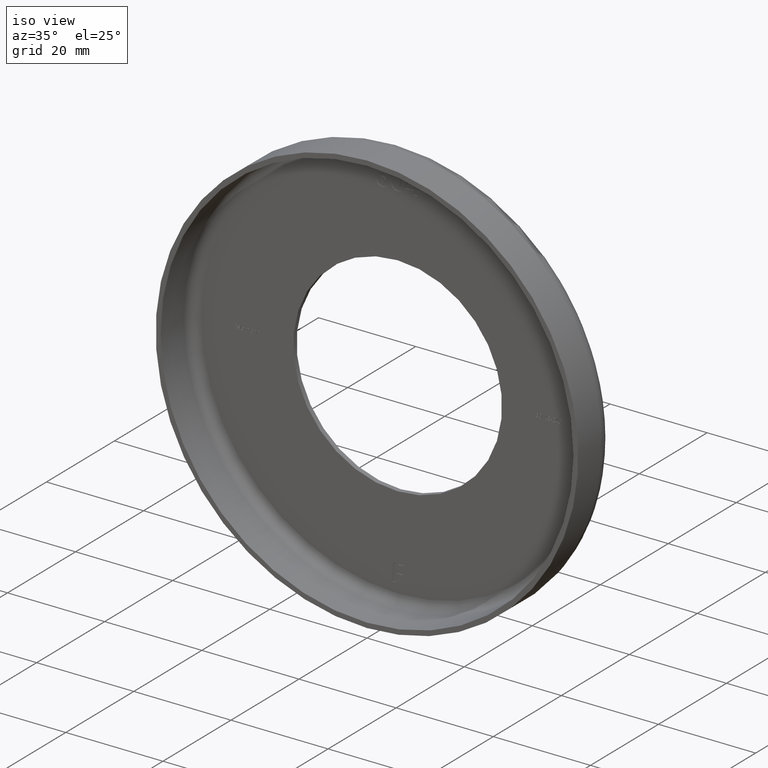
[diagram: clean part render]
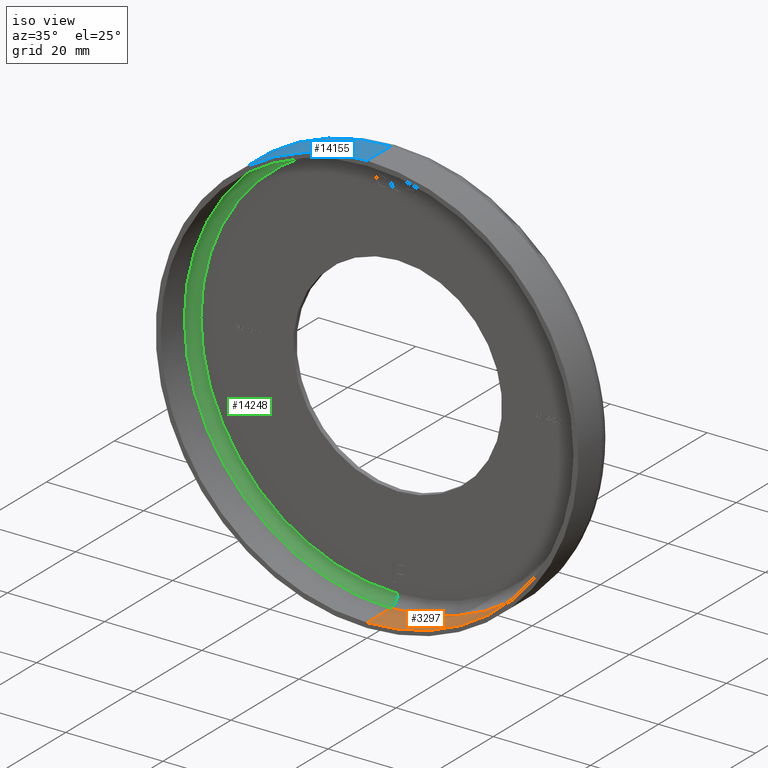
[diagram: same view with three faces highlighted in distinct colors, each labeled with its STEP entity id]
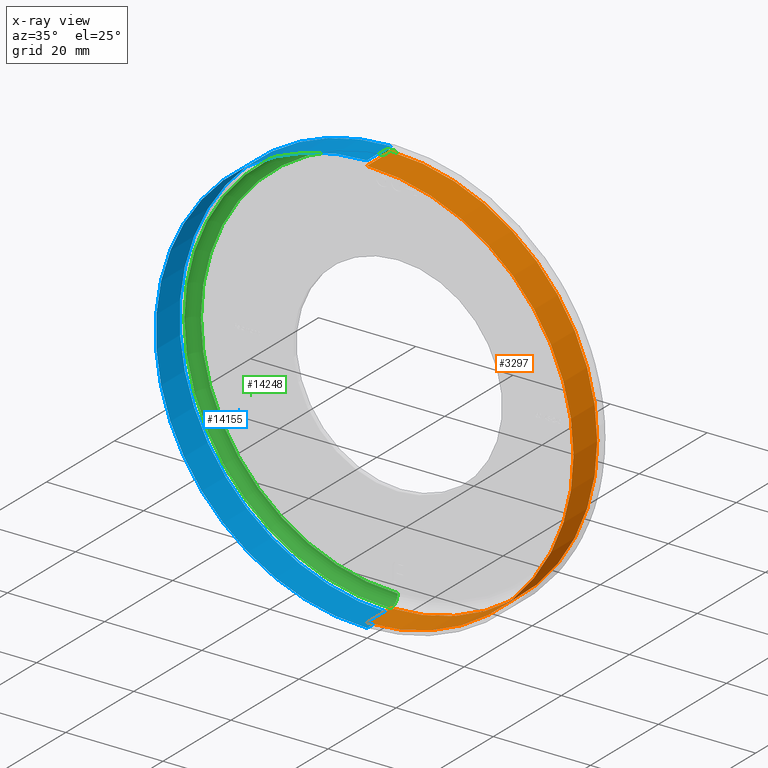
[diagram: x-ray of the same camera — body ghosted, the three highlighted faces saturated]
A machine part, iso view with three faces highlighted in distinct colors.
The next image is the same camera in x-ray (body ghosted, the three faces saturated) — at least one of them is partly hidden behind the body in this view.
Their STEP definitions:

[orange] entity #3297 — the highlighted cylindrical surface (partial cylindrical patch) has radius 42.5 mm, axis along (-0, -1, -0).
#240 = CARTESIAN_POINT ( 'NONE',  ( 0.000000000000000000, 0.000000000000000000, 0.000000000000000000 ) ) ;
#1101 = VECTOR ( 'NONE', #1213, 1000.000000000000000 ) ;
#1213 = DIRECTION ( 'NONE',  ( -0.000000000000000000, -1.000000000000000000, -0.000000000000000000 ) ) ;
#1293 = CARTESIAN_POINT ( 'NONE',  ( 5.204748896376250107E-15, 6.999999999999999112, 42.49999999999999289 ) ) ;
#1469 = EDGE_CURVE ( 'NONE', #15814, #7232, #1479, .T. ) ;
#1479 = LINE ( 'NONE', #13504, #1101 ) ;
#2260 = EDGE_CURVE ( 'NONE', #8493, #5234, #15602, .T. ) ;
#2317 = DIRECTION ( 'NONE',  ( 0.000000000000000000, 0.000000000000000000, -1.000000000000000000 ) ) ;
#2772 = CARTESIAN_POINT ( 'NONE',  ( 5.204748896376250107E-15, 0.000000000000000000, 42.49999999999999289 ) ) ;
#2858 = AXIS2_PLACEMENT_3D ( 'NONE', #7783, #5459, #2999 ) ;
#2999 = DIRECTION ( 'NONE',  ( 0.000000000000000000, 0.000000000000000000, -1.000000000000000000 ) ) ;
#3297 = ADVANCED_FACE ( 'NONE', ( #6491 ), #12093, .F. ) ;
#3893 = EDGE_LOOP ( 'NONE', ( #13145, #15017, #10776, #12156 ) ) ;
#4939 = CARTESIAN_POINT ( 'NONE',  ( 5.204748896376250107E-15, -1.224646799147353207E-16, 42.49999999999999289 ) ) ;
#5196 = EDGE_CURVE ( 'NONE', #15814, #8493, #6649, .T. ) ;
#5234 = VERTEX_POINT ( 'NONE', #4939 ) ;
#5452 = AXIS2_PLACEMENT_3D ( 'NONE', #14557, #8321, #2317 ) ;
#5459 = DIRECTION ( 'NONE',  ( -0.000000000000000000, -1.000000000000000000, -0.000000000000000000 ) ) ;
#6491 = FACE_OUTER_BOUND ( 'NONE', #3893, .T. ) ;
#6577 = DIRECTION ( 'NONE',  ( -0.000000000000000000, -1.000000000000000000, -0.000000000000000000 ) ) ;
#6649 = CIRCLE ( 'NONE', #5452, 42.49999999999999289 ) ;
#7232 = VERTEX_POINT ( 'NONE', #14876 ) ;
#7783 = CARTESIAN_POINT ( 'NONE',  ( 0.000000000000000000, -1.224646799147353207E-16, 0.000000000000000000 ) ) ;
#8321 = DIRECTION ( 'NONE',  ( -0.000000000000000000, -1.000000000000000000, -0.000000000000000000 ) ) ;
#8493 = VERTEX_POINT ( 'NONE', #1293 ) ;
#9087 = DIRECTION ( 'NONE',  ( 0.000000000000000000, 0.000000000000000000, -1.000000000000000000 ) ) ;
#9408 = VECTOR ( 'NONE', #6577, 1000.000000000000000 ) ;
#10776 = ORIENTED_EDGE ( 'NONE', *, *, #1469, .T. ) ;
#10796 = CIRCLE ( 'NONE', #2858, 42.49999999999999289 ) ;
#11194 = CARTESIAN_POINT ( 'NONE',  ( 0.000000000000000000, 6.999999999999999112, -42.49999999999999289 ) ) ;
#11313 = EDGE_CURVE ( 'NONE', #7232, #5234, #10796, .T. ) ;
#12093 = CYLINDRICAL_SURFACE ( 'NONE', #13683, 42.49999999999999289 ) ;
#12156 = ORIENTED_EDGE ( 'NONE', *, *, #11313, .T. ) ;
#12437 = DIRECTION ( 'NONE',  ( -0.000000000000000000, -1.000000000000000000, -0.000000000000000000 ) ) ;
#13145 = ORIENTED_EDGE ( 'NONE', *, *, #2260, .F. ) ;
#13504 = CARTESIAN_POINT ( 'NONE',  ( 0.000000000000000000, 0.000000000000000000, -42.49999999999999289 ) ) ;
#13683 = AXIS2_PLACEMENT_3D ( 'NONE', #240, #12437, #9087 ) ;
#14557 = CARTESIAN_POINT ( 'NONE',  ( 0.000000000000000000, 6.999999999999999112, 0.000000000000000000 ) ) ;
#14876 = CARTESIAN_POINT ( 'NONE',  ( 0.000000000000000000, -1.224646799147353207E-16, -42.49999999999999289 ) ) ;
#15017 = ORIENTED_EDGE ( 'NONE', *, *, #5196, .F. ) ;
#15602 = LINE ( 'NONE', #2772, #9408 ) ;
#15814 = VERTEX_POINT ( 'NONE', #11194 ) ;

[blue] entity #14155 — the highlighted cylindrical surface (partial cylindrical patch) has radius 43.5 mm, axis along (-0, -1, -0).
#43 = DIRECTION ( 'NONE',  ( -0.000000000000000000, -1.000000000000000000, -0.000000000000000000 ) ) ;
#73 = VERTEX_POINT ( 'NONE', #15443 ) ;
#169 = DIRECTION ( 'NONE',  ( 0.000000000000000000, 0.000000000000000000, -1.000000000000000000 ) ) ;
#1406 = CARTESIAN_POINT ( 'NONE',  ( 5.327213576290986044E-15, 0.000000000000000000, 43.50000000000000000 ) ) ;
#2749 = DIRECTION ( 'NONE',  ( -0.000000000000000000, -1.000000000000000000, -0.000000000000000000 ) ) ;
#3613 = CARTESIAN_POINT ( 'NONE',  ( 0.000000000000000000, 0.000000000000000000, -43.50000000000000000 ) ) ;
#3803 = ORIENTED_EDGE ( 'NONE', *, *, #8461, .T. ) ;
#4429 = AXIS2_PLACEMENT_3D ( 'NONE', #7644, #14897, #5145 ) ;
#4656 = ORIENTED_EDGE ( 'NONE', *, *, #7587, .F. ) ;
#4960 = ORIENTED_EDGE ( 'NONE', *, *, #12518, .T. ) ;
#5145 = DIRECTION ( 'NONE',  ( 0.000000000000000000, 0.000000000000000000, -1.000000000000000000 ) ) ;
#5348 = CIRCLE ( 'NONE', #8043, 43.50000000000000000 ) ;
#5737 = FACE_OUTER_BOUND ( 'NONE', #6428, .T. ) ;
#6345 = DIRECTION ( 'NONE',  ( -0.000000000000000000, -1.000000000000000000, -0.000000000000000000 ) ) ;
#6428 = EDGE_LOOP ( 'NONE', ( #4656, #4960, #3803, #14533 ) ) ;
#7151 = CIRCLE ( 'NONE', #4429, 43.50000000000000000 ) ;
#7277 = VERTEX_POINT ( 'NONE', #9145 ) ;
#7365 = LINE ( 'NONE', #1406, #15709 ) ;
#7587 = EDGE_CURVE ( 'NONE', #73, #7880, #7365, .T. ) ;
#7644 = CARTESIAN_POINT ( 'NONE',  ( 0.000000000000000000, 0.000000000000000000, 0.000000000000000000 ) ) ;
#7880 = VERTEX_POINT ( 'NONE', #11847 ) ;
#8043 = AXIS2_PLACEMENT_3D ( 'NONE', #10014, #2749, #169 ) ;
#8461 = EDGE_CURVE ( 'NONE', #9293, #7277, #15497, .T. ) ;
#9145 = CARTESIAN_POINT ( 'NONE',  ( 0.000000000000000000, 0.000000000000000000, -43.50000000000000000 ) ) ;
#9293 = VERTEX_POINT ( 'NONE', #13291 ) ;
#9629 = EDGE_CURVE ( 'NONE', #7880, #7277, #7151, .T. ) ;
#10014 = CARTESIAN_POINT ( 'NONE',  ( 0.000000000000000000, 6.999999999999999112, 0.000000000000000000 ) ) ;
#10959 = DIRECTION ( 'NONE',  ( -0.000000000000000000, -1.000000000000000000, -0.000000000000000000 ) ) ;
#11576 = AXIS2_PLACEMENT_3D ( 'NONE', #15948, #10959, #15842 ) ;
#11847 = CARTESIAN_POINT ( 'NONE',  ( 5.327213576290986044E-15, 0.000000000000000000, 43.50000000000000000 ) ) ;
#12518 = EDGE_CURVE ( 'NONE', #73, #9293, #5348, .T. ) ;
#13291 = CARTESIAN_POINT ( 'NONE',  ( 0.000000000000000000, 6.999999999999999112, -43.50000000000000000 ) ) ;
#14155 = ADVANCED_FACE ( 'NONE', ( #5737 ), #15951, .T. ) ;
#14533 = ORIENTED_EDGE ( 'NONE', *, *, #9629, .F. ) ;
#14695 = VECTOR ( 'NONE', #43, 1000.000000000000000 ) ;
#14897 = DIRECTION ( 'NONE',  ( -0.000000000000000000, -1.000000000000000000, -0.000000000000000000 ) ) ;
#15443 = CARTESIAN_POINT ( 'NONE',  ( 5.327213576290985256E-15, 6.999999999999999112, 43.50000000000000000 ) ) ;
#15497 = LINE ( 'NONE', #3613, #14695 ) ;
#15709 = VECTOR ( 'NONE', #6345, 1000.000000000000000 ) ;
#15842 = DIRECTION ( 'NONE',  ( 0.000000000000000000, 0.000000000000000000, -1.000000000000000000 ) ) ;
#15948 = CARTESIAN_POINT ( 'NONE',  ( 0.000000000000000000, 0.000000000000000000, 0.000000000000000000 ) ) ;
#15951 = CYLINDRICAL_SURFACE ( 'NONE', #11576, 43.50000000000000000 ) ;

[green] entity #14248 — the highlighted toroidal blend (fillet) surface has major radius 40.5 mm and minor (blend) radius 2 mm.
#38 = DIRECTION ( 'NONE',  ( 0.000000000000000000, 0.000000000000000000, -1.000000000000000000 ) ) ;
#1092 = DIRECTION ( 'NONE',  ( 0.000000000000000000, 0.000000000000000000, 1.000000000000000000 ) ) ;
#1293 = CARTESIAN_POINT ( 'NONE',  ( 5.204748896376250107E-15, 6.999999999999999112, 42.49999999999999289 ) ) ;
#1599 = CIRCLE ( 'NONE', #9373, 42.49999999999999289 ) ;
#2150 = EDGE_CURVE ( 'NONE', #12202, #10223, #3415, .T. ) ;
#2404 = AXIS2_PLACEMENT_3D ( 'NONE', #14921, #5106, #6206 ) ;
#3366 = TOROIDAL_SURFACE ( 'NONE', #15426, 40.49999999999999289, 2.000000000000001776 ) ;
#3415 = CIRCLE ( 'NONE', #7186, 40.49999999999999289 ) ;
#4896 = CIRCLE ( 'NONE', #10962, 2.000000000000001776 ) ;
#5106 = DIRECTION ( 'NONE',  ( 1.000000000000000000, 0.000000000000000000, -1.224646799147353207E-16 ) ) ;
#5255 = EDGE_CURVE ( 'NONE', #12202, #8493, #6460, .T. ) ;
#5278 = ORIENTED_EDGE ( 'NONE', *, *, #15211, .F. ) ;
#5310 = EDGE_CURVE ( 'NONE', #8493, #15814, #1599, .T. ) ;
#6206 = DIRECTION ( 'NONE',  ( -1.224646799147353454E-16, 0.000000000000000000, -1.000000000000000000 ) ) ;
#6318 = CARTESIAN_POINT ( 'NONE',  ( 0.000000000000000000, 9.000000000000001776, -40.49999999999999289 ) ) ;
#6460 = CIRCLE ( 'NONE', #2404, 2.000000000000001776 ) ;
#6561 = DIRECTION ( 'NONE',  ( -0.000000000000000000, -1.000000000000000000, -0.000000000000000000 ) ) ;
#7048 = FACE_OUTER_BOUND ( 'NONE', #8612, .T. ) ;
#7186 = AXIS2_PLACEMENT_3D ( 'NONE', #13568, #15997, #16053 ) ;
#7190 = ORIENTED_EDGE ( 'NONE', *, *, #5310, .T. ) ;
#8493 = VERTEX_POINT ( 'NONE', #1293 ) ;
#8612 = EDGE_LOOP ( 'NONE', ( #14984, #12214, #7190, #5278 ) ) ;
#9025 = DIRECTION ( 'NONE',  ( 0.000000000000000000, 0.000000000000000000, -1.000000000000000000 ) ) ;
#9041 = CARTESIAN_POINT ( 'NONE',  ( 5.082284216461514959E-15, 9.000000000000001776, 40.49999999999999289 ) ) ;
#9373 = AXIS2_PLACEMENT_3D ( 'NONE', #10177, #6561, #9025 ) ;
#10042 = CARTESIAN_POINT ( 'NONE',  ( 0.000000000000000000, 6.999999999999999112, 0.000000000000000000 ) ) ;
#10177 = CARTESIAN_POINT ( 'NONE',  ( 0.000000000000000000, 6.999999999999999112, 0.000000000000000000 ) ) ;
#10223 = VERTEX_POINT ( 'NONE', #6318 ) ;
#10962 = AXIS2_PLACEMENT_3D ( 'NONE', #15908, #13639, #1092 ) ;
#11194 = CARTESIAN_POINT ( 'NONE',  ( 0.000000000000000000, 6.999999999999999112, -42.49999999999999289 ) ) ;
#11213 = DIRECTION ( 'NONE',  ( -0.000000000000000000, -1.000000000000000000, -0.000000000000000000 ) ) ;
#12202 = VERTEX_POINT ( 'NONE', #9041 ) ;
#12214 = ORIENTED_EDGE ( 'NONE', *, *, #5255, .T. ) ;
#13568 = CARTESIAN_POINT ( 'NONE',  ( 0.000000000000000000, 9.000000000000001776, 0.000000000000000000 ) ) ;
#13639 = DIRECTION ( 'NONE',  ( -1.000000000000000000, 0.000000000000000000, 0.000000000000000000 ) ) ;
#14248 = ADVANCED_FACE ( 'NONE', ( #7048 ), #3366, .F. ) ;
#14921 = CARTESIAN_POINT ( 'NONE',  ( 4.959819536546779811E-15, 6.999999999999999112, 40.49999999999999289 ) ) ;
#14984 = ORIENTED_EDGE ( 'NONE', *, *, #2150, .F. ) ;
#15211 = EDGE_CURVE ( 'NONE', #10223, #15814, #4896, .T. ) ;
#15426 = AXIS2_PLACEMENT_3D ( 'NONE', #10042, #11213, #38 ) ;
#15814 = VERTEX_POINT ( 'NONE', #11194 ) ;
#15908 = CARTESIAN_POINT ( 'NONE',  ( 0.000000000000000000, 6.999999999999999112, -40.49999999999999289 ) ) ;
#15997 = DIRECTION ( 'NONE',  ( -0.000000000000000000, -1.000000000000000000, -0.000000000000000000 ) ) ;
#16053 = DIRECTION ( 'NONE',  ( 0.000000000000000000, 0.000000000000000000, -1.000000000000000000 ) ) ;